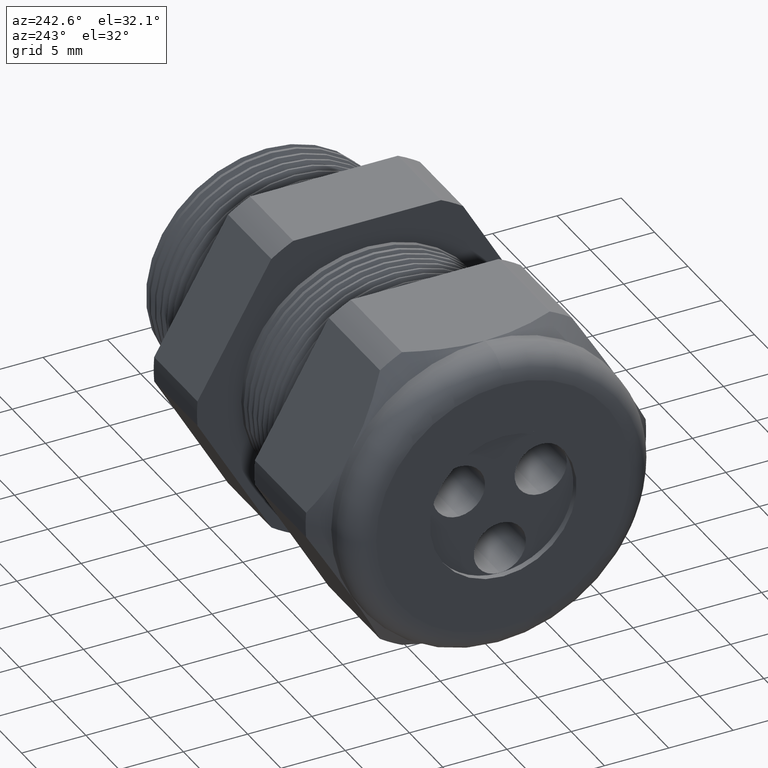
[diagram: clean part render]
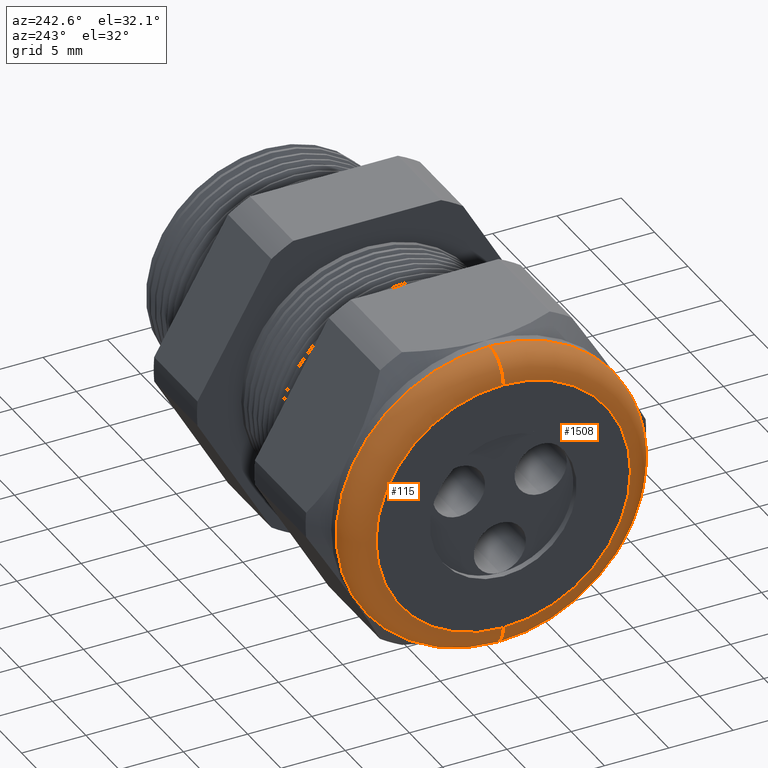
[diagram: same view with one multi-face feature highlighted, each face labeled with its STEP entity id]
A machine part, auxiliary view. The highlighted faces form ONE feature: a constant-radius fillet chain: 2 tangent blend faces with common blend radius 2.032 mm. The faces share edges in the B-rep.
Their STEP definitions:
[1] entity #115 (Torus):
#23 = ORIENTED_EDGE ( 'NONE', *, *, #33, .T. ) ;
#24 = VERTEX_POINT ( 'NONE', #1632 ) ;
#27 = VERTEX_POINT ( 'NONE', #1629 ) ;
#28 = ORIENTED_EDGE ( 'NONE', *, *, #29, .F. ) ;
#29 = EDGE_CURVE ( 'NONE', #24, #27, #1624, .T. ) ;
#30 = ORIENTED_EDGE ( 'NONE', *, *, #31, .F. ) ;
#31 = EDGE_CURVE ( 'NONE', #27, #32, #1619, .T. ) ;
#32 = VERTEX_POINT ( 'NONE', #1614 ) ;
#33 = EDGE_CURVE ( 'NONE', #118, #32, #1613, .T. ) ;
#34 = EDGE_CURVE ( 'NONE', #118, #24, #1669, .T. ) ;
#115 = ADVANCED_FACE ( 'NONE', ( #1826 ), #1824, .T. ) ;
#116 = EDGE_LOOP ( 'NONE', ( #117, #23, #30, #28 ) ) ;
#117 = ORIENTED_EDGE ( 'NONE', *, *, #34, .F. ) ;
#118 = VERTEX_POINT ( 'NONE', #1820 ) ;
#1613 = CIRCLE ( 'NONE', #1673, 0.07999999999999996000 ) ;
#1614 = CARTESIAN_POINT ( 'NONE',  ( -1.370000000000000100, 5.265981236333617600E-017, -0.3899999999999999600 ) ) ;
#1615 = DIRECTION ( 'NONE',  ( 0.0000000000000000000, 0.0000000000000000000, 1.000000000000000000 ) ) ;
#1616 = DIRECTION ( 'NONE',  ( -1.000000000000000000, 0.0000000000000000000, 0.0000000000000000000 ) ) ;
#1617 = CARTESIAN_POINT ( 'NONE',  ( -1.370000000000000100, 0.0000000000000000000, 0.0000000000000000000 ) ) ;
#1618 = AXIS2_PLACEMENT_3D ( 'NONE', #1617, #1616, #1615 ) ;
#1619 = CIRCLE ( 'NONE', #1618, 0.3899999999999999600 ) ;
#1620 = DIRECTION ( 'NONE',  ( 0.0000000000000000000, 0.0000000000000000000, -1.000000000000000000 ) ) ;
#1621 = DIRECTION ( 'NONE',  ( 0.0000000000000000000, -1.000000000000000000, 0.0000000000000000000 ) ) ;
#1622 = CARTESIAN_POINT ( 'NONE',  ( -1.290000000000000300, 0.0000000000000000000, 0.3899999999999999600 ) ) ;
#1623 = AXIS2_PLACEMENT_3D ( 'NONE', #1622, #1621, #1620 ) ;
#1624 = CIRCLE ( 'NONE', #1623, 0.07999999999999996000 ) ;
#1629 = CARTESIAN_POINT ( 'NONE',  ( -1.370000000000000100, 0.0000000000000000000, 0.3899999999999999600 ) ) ;
#1632 = CARTESIAN_POINT ( 'NONE',  ( -1.290000000000000300, 5.755839955992558400E-017, 0.4699999999999999200 ) ) ;
#1666 = DIRECTION ( 'NONE',  ( 0.0000000000000000000, 0.0000000000000000000, 1.000000000000000000 ) ) ;
#1667 = DIRECTION ( 'NONE',  ( 1.000000000000000000, 0.0000000000000000000, 0.0000000000000000000 ) ) ;
#1668 = AXIS2_PLACEMENT_3D ( 'NONE', #1674, #1667, #1666 ) ;
#1669 = CIRCLE ( 'NONE', #1668, 0.4699999999999999200 ) ;
#1670 = DIRECTION ( 'NONE',  ( 0.0000000000000000000, -1.224646799147353900E-016, 1.000000000000000000 ) ) ;
#1671 = DIRECTION ( 'NONE',  ( 0.0000000000000000000, 1.000000000000000000, 1.224646799147353200E-016 ) ) ;
#1672 = CARTESIAN_POINT ( 'NONE',  ( -1.290000000000000300, 4.776122516674676800E-017, -0.3899999999999999600 ) ) ;
#1673 = AXIS2_PLACEMENT_3D ( 'NONE', #1672, #1671, #1670 ) ;
#1674 = CARTESIAN_POINT ( 'NONE',  ( -1.290000000000000300, 0.0000000000000000000, 0.0000000000000000000 ) ) ;
#1820 = CARTESIAN_POINT ( 'NONE',  ( -1.290000000000000300, 0.0000000000000000000, -0.4699999999999999200 ) ) ;
#1821 = DIRECTION ( 'NONE',  ( 0.0000000000000000000, 0.0000000000000000000, 1.000000000000000000 ) ) ;
#1822 = DIRECTION ( 'NONE',  ( -1.000000000000000000, 0.0000000000000000000, 0.0000000000000000000 ) ) ;
#1823 = AXIS2_PLACEMENT_3D ( 'NONE', #1825, #1822, #1821 ) ;
#1824 = TOROIDAL_SURFACE ( 'NONE', #1823, 0.3899999999999999600, 0.08000000000000000200 ) ;
#1825 = CARTESIAN_POINT ( 'NONE',  ( -1.290000000000000300, 0.0000000000000000000, 0.0000000000000000000 ) ) ;
#1826 = FACE_OUTER_BOUND ( 'NONE', #116, .T. ) ;
[2] entity #1508 (Torus):
#24 = VERTEX_POINT ( 'NONE', #1632 ) ;
#27 = VERTEX_POINT ( 'NONE', #1629 ) ;
#29 = EDGE_CURVE ( 'NONE', #24, #27, #1624, .T. ) ;
#32 = VERTEX_POINT ( 'NONE', #1614 ) ;
#33 = EDGE_CURVE ( 'NONE', #118, #32, #1613, .T. ) ;
#118 = VERTEX_POINT ( 'NONE', #1820 ) ;
#1361 = EDGE_CURVE ( 'NONE', #32, #27, #4108, .T. ) ;
#1375 = EDGE_CURVE ( 'NONE', #24, #118, #4143, .T. ) ;
#1508 = ADVANCED_FACE ( 'NONE', ( #4344 ), #4342, .T. ) ;
#1509 = EDGE_LOOP ( 'NONE', ( #1561, #1562, #1563, #1564 ) ) ;
#1561 = ORIENTED_EDGE ( 'NONE', *, *, #33, .F. ) ;
#1562 = ORIENTED_EDGE ( 'NONE', *, *, #1375, .F. ) ;
#1563 = ORIENTED_EDGE ( 'NONE', *, *, #29, .T. ) ;
#1564 = ORIENTED_EDGE ( 'NONE', *, *, #1361, .F. ) ;
#1613 = CIRCLE ( 'NONE', #1673, 0.07999999999999996000 ) ;
#1614 = CARTESIAN_POINT ( 'NONE',  ( -1.370000000000000100, 5.265981236333617600E-017, -0.3899999999999999600 ) ) ;
#1620 = DIRECTION ( 'NONE',  ( 0.0000000000000000000, 0.0000000000000000000, -1.000000000000000000 ) ) ;
#1621 = DIRECTION ( 'NONE',  ( 0.0000000000000000000, -1.000000000000000000, 0.0000000000000000000 ) ) ;
#1622 = CARTESIAN_POINT ( 'NONE',  ( -1.290000000000000300, 0.0000000000000000000, 0.3899999999999999600 ) ) ;
#1623 = AXIS2_PLACEMENT_3D ( 'NONE', #1622, #1621, #1620 ) ;
#1624 = CIRCLE ( 'NONE', #1623, 0.07999999999999996000 ) ;
#1629 = CARTESIAN_POINT ( 'NONE',  ( -1.370000000000000100, 0.0000000000000000000, 0.3899999999999999600 ) ) ;
#1632 = CARTESIAN_POINT ( 'NONE',  ( -1.290000000000000300, 5.755839955992558400E-017, 0.4699999999999999200 ) ) ;
#1670 = DIRECTION ( 'NONE',  ( 0.0000000000000000000, -1.224646799147353900E-016, 1.000000000000000000 ) ) ;
#1671 = DIRECTION ( 'NONE',  ( 0.0000000000000000000, 1.000000000000000000, 1.224646799147353200E-016 ) ) ;
#1672 = CARTESIAN_POINT ( 'NONE',  ( -1.290000000000000300, 4.776122516674676800E-017, -0.3899999999999999600 ) ) ;
#1673 = AXIS2_PLACEMENT_3D ( 'NONE', #1672, #1671, #1670 ) ;
#1820 = CARTESIAN_POINT ( 'NONE',  ( -1.290000000000000300, 0.0000000000000000000, -0.4699999999999999200 ) ) ;
#4104 = DIRECTION ( 'NONE',  ( 0.0000000000000000000, 0.0000000000000000000, 1.000000000000000000 ) ) ;
#4105 = DIRECTION ( 'NONE',  ( -1.000000000000000000, 0.0000000000000000000, 0.0000000000000000000 ) ) ;
#4106 = CARTESIAN_POINT ( 'NONE',  ( -1.370000000000000100, 0.0000000000000000000, 0.0000000000000000000 ) ) ;
#4107 = AXIS2_PLACEMENT_3D ( 'NONE', #4106, #4105, #4104 ) ;
#4108 = CIRCLE ( 'NONE', #4107, 0.3899999999999999600 ) ;
#4140 = DIRECTION ( 'NONE',  ( 0.0000000000000000000, 0.0000000000000000000, 1.000000000000000000 ) ) ;
#4141 = DIRECTION ( 'NONE',  ( 1.000000000000000000, 0.0000000000000000000, 0.0000000000000000000 ) ) ;
#4142 = AXIS2_PLACEMENT_3D ( 'NONE', #4148, #4141, #4140 ) ;
#4143 = CIRCLE ( 'NONE', #4142, 0.4699999999999999200 ) ;
#4148 = CARTESIAN_POINT ( 'NONE',  ( -1.290000000000000300, 0.0000000000000000000, 0.0000000000000000000 ) ) ;
#4339 = DIRECTION ( 'NONE',  ( 0.0000000000000000000, 0.0000000000000000000, 1.000000000000000000 ) ) ;
#4340 = DIRECTION ( 'NONE',  ( -1.000000000000000000, 0.0000000000000000000, 0.0000000000000000000 ) ) ;
#4341 = AXIS2_PLACEMENT_3D ( 'NONE', #4343, #4340, #4339 ) ;
#4342 = TOROIDAL_SURFACE ( 'NONE', #4341, 0.3899999999999999600, 0.08000000000000000200 ) ;
#4343 = CARTESIAN_POINT ( 'NONE',  ( -1.290000000000000300, 0.0000000000000000000, 0.0000000000000000000 ) ) ;
#4344 = FACE_OUTER_BOUND ( 'NONE', #1509, .T. ) ;